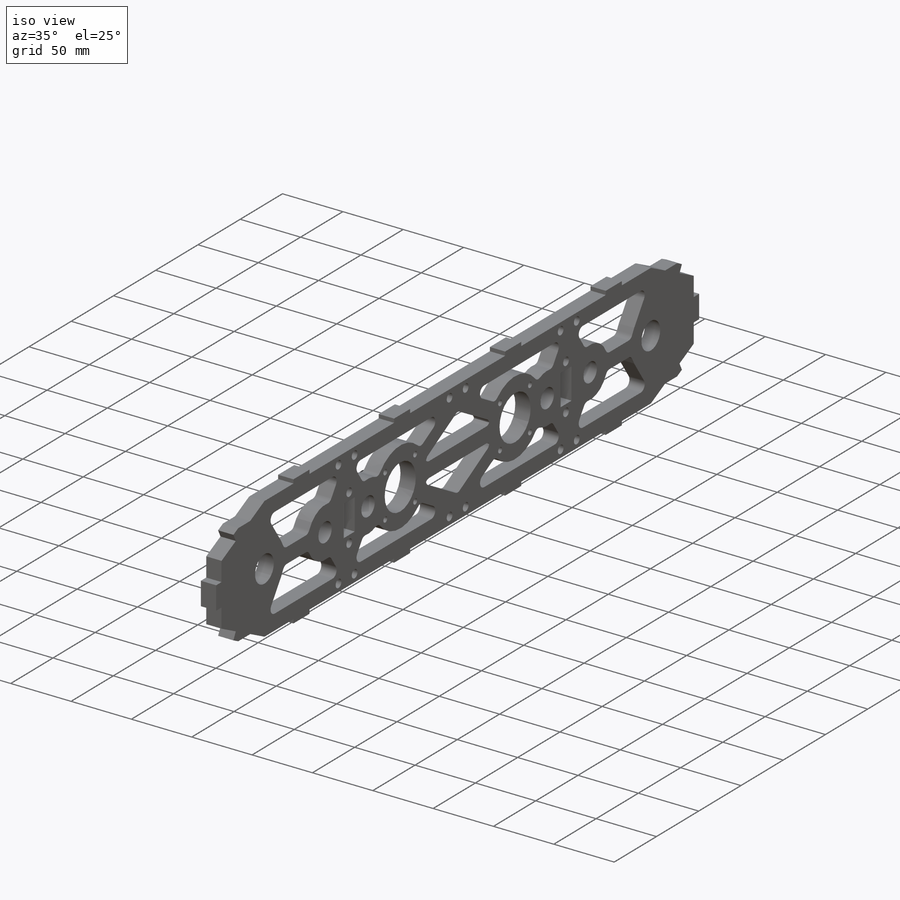
[diagram: iso view]
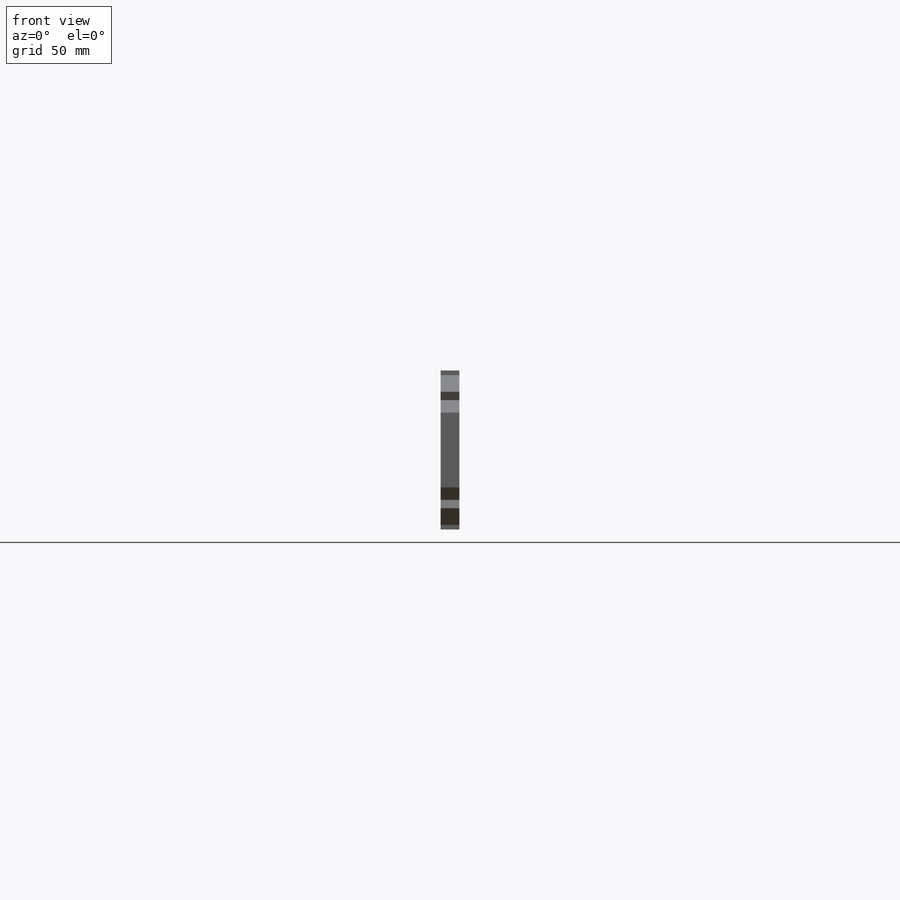
[diagram: front view]
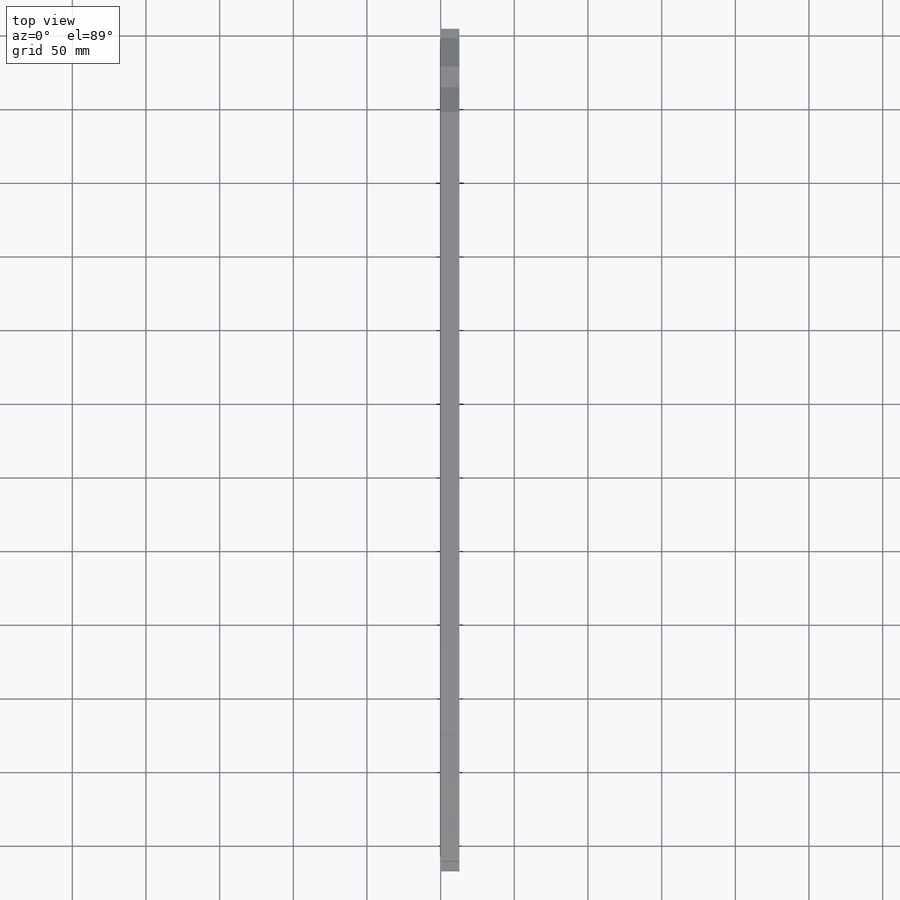
[diagram: top view]
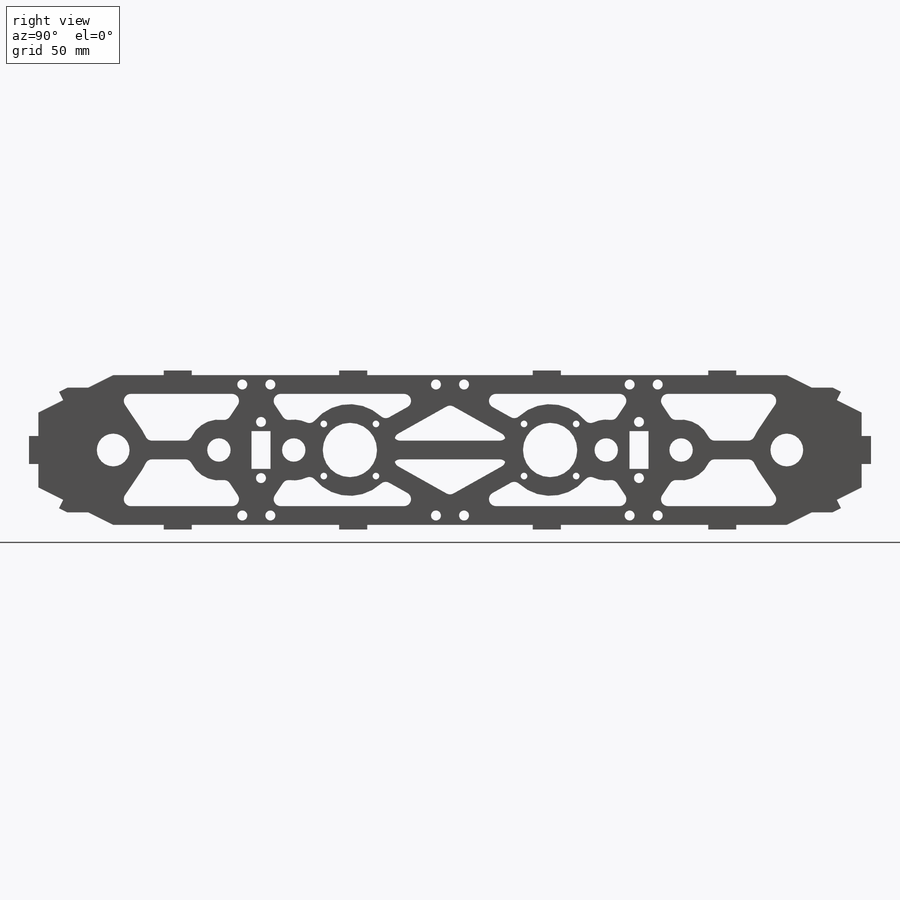
[diagram: right view]
SOLIDWORKS PART (.sldprt)
format: sldprt  version: not decoded by parser v0  size: 1,163,776 bytes
history: native  units: mm
features: sketch x24, hole x7, extrude x5, cut_extrude x5, mirror x3, material x1, fillet x1 (+13 scaffold rows collapsed)
feature tree (59):
  scaffold x13  (default folders/planes/origin — collapsed)
  material  "6061-T6 (SS)"
  sketch  "Sketch1"  dims[c1.D1=~9.285877mm c1.D3=~12.882042mm c1.D4=15.875mm c1.D5=101.6mm c1.D9=50.8mm c1.D10=67.31mm c1.D11=79.502mm c1.D12=46.736mm c2.D1=38.1mm c2.D2=50.8mm c2.D3=71.755mm c2.D6=254.0mm c2.D7=38.1mm c2.D8=38.1mm]
  extrude  "Boss-Extrude1"  Depth=12.7mm
  hole  "#8 Clearance Hole1"  Diameter=4.4958mm Depth=12.7mm
  sketch  "Sketch3"
  sketch  "Sketch4"  dims[hole-wizard template sketch: 61 standard entries collapsed; hole parameters above]
  sketch  "Sketch5"  dims[D1=~18.903272mm]
  cut_extrude  "Cut-Extrude1"  [1 undecoded]
  sketch  "Sketch8"  dims[D1=50.8mm]
  cut_extrude  "Cut-Extrude3"  [1 undecoded]
  sketch  "Sketch9"
  extrude  "Boss-Extrude2"  Depth=12.7mm
  sketch  "Sketch10"  dims[D1=25.4mm]
  cut_extrude  "Cut-Extrude4"  [1 undecoded]
  mirror  "Mirror2"
  sketch  "Sketch11"
  extrude  "Boss-Extrude3"  [1 undecoded]
  mirror  "Mirror6"
  sketch  "Sketch12"  dims[c1.D10=71.755mm c1.D12=~0.33979mm c1.D14=~149.401814mm c2.D12=~31.750755mm c2.D14=~77.898222mm c2.D1=12.7mm c2.D2=12.7mm c2.D3=12.7mm c2.D4=12.7mm c2.D5=12.7mm c2.D6=12.7mm c2.D7=12.7mm c2.D8=12.7mm c2.D9=12.7mm c2.D10=6.35mm c2.D11=6.35mm c3.D12=12.7mm c3.D13=12.7mm c4.D12=6.35mm c4.D13=6.35mm c4.D14=6.35mm c4.D15=6.35mm]
  cut_extrude  "Cut-Extrude5"  [1 undecoded]
  fillet  "Fillet1"  Radius=4.7625mm
  sketch  "Sketch14"  dims[c1.D1=~24.720081mm c1.D2=~12.360041mm c2.D1=~24.720081mm c2.D2=~11.201287mm c3.D1=66.675mm c3.D2=66.675mm c3.D3=12.7mm c3.D4=12.7mm c3.D5=25.4mm c3.D6=25.4mm c3.D7=0.127mm c3.D8=0.127mm]
  cut_extrude  "Cut-Extrude6"  [1 undecoded]
  hole  "1/4 Clearance Hole1"  Diameter=6.7564mm Depth=12.7mm
  sketch  "Sketch16"  dims[D1=60.325mm D2=38.1mm]
  sketch  "Sketch15"  dims[hole-wizard template sketch: 61 standard entries collapsed; hole parameters above]
  hole  "1/4 Clearance Hole2"  Diameter=6.7564mm Depth=12.70005mm
  sketch  "Sketch18"  dims[D1=6.35mm D2=9.525mm]
  sketch  "Sketch17"  dims[hole-wizard template sketch: 60 standard entries collapsed; hole parameters kept: c18.Thru Hole Depth=~12.70005mm]
  sketch  "Sketch19"  dims[c1.D1=~13.155713mm c1.D2=~27.141737mm c2.D1=~17.989173mm c2.D2=~35.693243mm c3.D1=~13.155713mm c3.D2=~35.321438mm c4.D1=~13.155713mm c4.D2=~32.718806mm c5.D1=19.05mm c5.D2=3.175mm]
  extrude  "Boss-Extrude4"  [1 undecoded]
  mirror  "Mirror7"
  sketch  "Sketch20"  dims[c1.D1=~24.10236mm c1.D2=~4.807559mm c2.D1=~27.249869mm c2.D2=~10.133322mm c3.D1=6.35mm c3.D2=19.05mm c3.D3=~9.193377mm]
  extrude  "Boss-Extrude5"  [1 undecoded]
  hole  "1/4-20 Tapped Hole1"  Diameter=5.1054mm Depth=22.86mm
  sketch  "Sketch22"
  sketch  "Sketch21"  dims[hole-wizard template sketch: 50 standard entries collapsed; hole parameters above]
  hole  "1/4-20 Tapped Hole2"  Diameter=5.1054mm Depth=22.86mm
  sketch  "Sketch24"
  sketch  "Sketch23"  dims[hole-wizard template sketch: 50 standard entries collapsed; hole parameters above]
  hole  "1/4-20 Tapped Hole3"  Diameter=5.1054mm Depth=22.86mm
  sketch  "Sketch26"
  sketch  "Sketch25"  dims[hole-wizard template sketch: 50 standard entries collapsed; hole parameters above]
  hole  "1/4-20 Tapped Hole4"  Diameter=5.1054mm Depth=22.86mm
  sketch  "Sketch28"
  sketch  "Sketch27"  dims[hole-wizard template sketch: 50 standard entries collapsed; hole parameters above]
decode coverage: 27 of 45 modeling features carry decoded parameters
note: ~ marks probable driven/reference dimensions
note: 8 parameter values undecoded
summary: no parameter record found for 8 features; Diameter pulled from absorbed wizard sketch
note: suppression state not decoded; provenance and decode notes live in map.json
